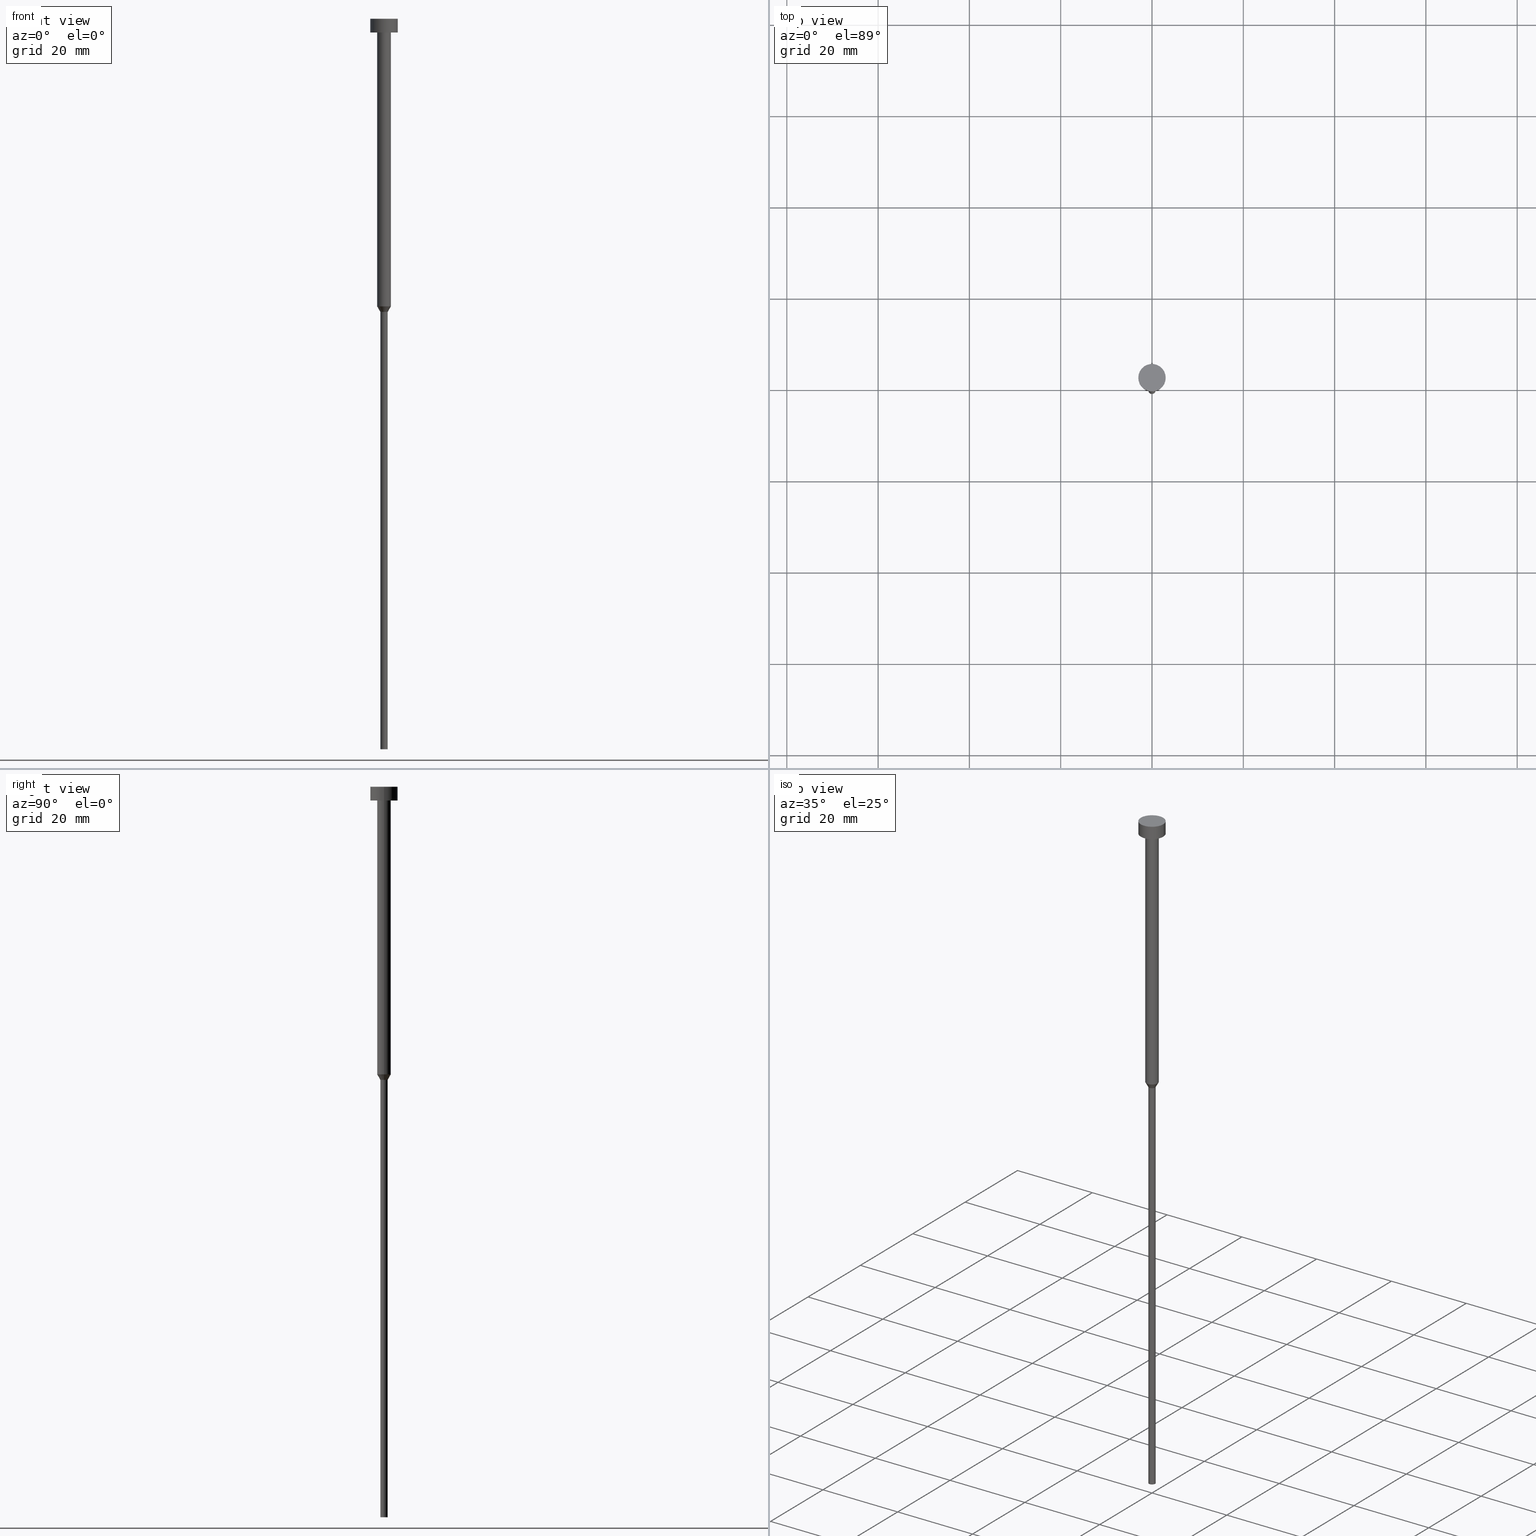
[diagram: canonical four-view strip — front | top / right | iso, engineering-drawing reading convention]
A machine part, canonical four-view strip (front | top / right | iso — engineering-drawing reading convention). The complete STEP part file that produces these views, byte-faithful:
ISO-10303-21;
HEADER;
FILE_DESCRIPTION (( 'STEP AP203' ),
    '1' );
FILE_NAME ('4787.STEP',
    '2023-02-13T10:02:17',
    ( '' ),
    ( '' ),
    'SwSTEP 2.0',
    'SolidWorks 2019',
    '' );
FILE_SCHEMA (( 'CONFIG_CONTROL_DESIGN' ));
ENDSEC;

DATA;
#1 = PLANE ( 'NONE',  #122 ) ;
#2 = EDGE_LOOP ( 'NONE', ( #156, #24, #78, #262 ) ) ;
#3 = DIRECTION ( 'NONE',  ( -0.000000000000000000, -0.000000000000000000, 1.000000000000000000 ) ) ;
#4 = VERTEX_POINT ( 'NONE', #188 ) ;
#5 = FACE_OUTER_BOUND ( 'NONE', #248, .T. ) ;
#6 = CYLINDRICAL_SURFACE ( 'NONE', #329, 1.500000000000000000 ) ;
#7 = CC_DESIGN_DATE_AND_TIME_ASSIGNMENT ( #197, #57, ( #351 ) ) ;
#8 = VERTEX_POINT ( 'NONE', #44 ) ;
#9 = PRODUCT_RELATED_PRODUCT_CATEGORY ( 'detail', '', ( #318 ) ) ;
#10 = CIRCLE ( 'NONE', #238, 0.7999999999999999334 ) ;
#11 = DIRECTION ( 'NONE',  ( 1.000000000000000000, 0.000000000000000000, 0.000000000000000000 ) ) ;
#12 = DATE_AND_TIME ( #183, #159 ) ;
#13 = ORIENTED_EDGE ( 'NONE', *, *, #264, .T. ) ;
#14 = CARTESIAN_POINT ( 'NONE',  ( 0.000000000000000000, 0.000000000000000000, 0.000000000000000000 ) ) ;
#15 = CARTESIAN_POINT ( 'NONE',  ( 0.000000000000000000, 0.000000000000000000, -3.000000000000000888 ) ) ;
#16 = CARTESIAN_POINT ( 'NONE',  ( 0.000000000000000000, 0.000000000000000000, -160.0000000000000000 ) ) ;
#17 = CIRCLE ( 'NONE', #304, 1.500000000000000000 ) ;
#18 = DIRECTION ( 'NONE',  ( 1.000000000000000000, 0.000000000000000000, 0.000000000000000000 ) ) ;
#19 = APPROVAL_DATE_TIME ( #52, #105 ) ;
#20 = PERSON_AND_ORGANIZATION_ROLE ( 'creator' ) ;
#21 = CARTESIAN_POINT ( 'NONE',  ( 0.7999999999999999334, 0.000000000000000000, 0.000000000000000000 ) ) ;
#22 = PRODUCT_DEFINITION_FORMATION_WITH_SPECIFIED_SOURCE ( 'LIBOVOLN�', '', #318, .NOT_KNOWN. ) ;
#23 = EDGE_CURVE ( 'NONE', #118, #321, #221, .T. ) ;
#24 = ORIENTED_EDGE ( 'NONE', *, *, #316, .T. ) ;
#25 = CIRCLE ( 'NONE', #340, 1.500000000000000000 ) ;
#26 = DIRECTION ( 'NONE',  ( -0.000000000000000000, -0.000000000000000000, 1.000000000000000000 ) ) ;
#27 = MANIFOLD_SOLID_BREP ( 'Rotovat1', #207 ) ;
#28 = DIRECTION ( 'NONE',  ( 1.000000000000000000, 0.000000000000000000, 0.000000000000000000 ) ) ;
#29 = FACE_OUTER_BOUND ( 'NONE', #2, .T. ) ;
#30 = DIRECTION ( 'NONE',  ( -0.000000000000000000, -0.000000000000000000, 1.000000000000000000 ) ) ;
#31 = CC_DESIGN_PERSON_AND_ORGANIZATION_ASSIGNMENT ( #204, #180, ( #318 ) ) ;
#32 = VERTEX_POINT ( 'NONE', #223 ) ;
#33 = APPROVAL_ROLE ( '' ) ;
#34 = CARTESIAN_POINT ( 'NONE',  ( 0.000000000000000000, 0.000000000000000000, -160.0000000000000000 ) ) ;
#35 = AXIS2_PLACEMENT_3D ( 'NONE', #14, #249, #72 ) ;
#36 = ORIENTED_EDGE ( 'NONE', *, *, #218, .F. ) ;
#37 = EDGE_LOOP ( 'NONE', ( #87, #154, #266, #36 ) ) ;
#38 = ORIENTED_EDGE ( 'NONE', *, *, #252, .F. ) ;
#39 = DIRECTION ( 'NONE',  ( -0.000000000000000000, -0.000000000000000000, 1.000000000000000000 ) ) ;
#40 = CC_DESIGN_SECURITY_CLASSIFICATION ( #351, ( #22 ) ) ;
#41 = ORIENTED_EDGE ( 'NONE', *, *, #211, .F. ) ;
#42 = CIRCLE ( 'NONE', #258, 3.000000000000000000 ) ;
#43 = PERSON_AND_ORGANIZATION_ROLE ( 'classification_officer' ) ;
#44 = CARTESIAN_POINT ( 'NONE',  ( -0.8000000000000001554, 9.797174393178827383E-17, -64.21243556529820751 ) ) ;
#45 = EDGE_CURVE ( 'NONE', #92, #53, #133, .T. ) ;
#46 = COORDINATED_UNIVERSAL_TIME_OFFSET ( 1, 0, .AHEAD. ) ;
#47 = LINE ( 'NONE', #50, #138 ) ;
#48 = DIRECTION ( 'NONE',  ( -0.000000000000000000, -0.000000000000000000, 1.000000000000000000 ) ) ;
#49 = DIRECTION ( 'NONE',  ( 1.000000000000000000, 0.000000000000000000, 0.000000000000000000 ) ) ;
#50 = CARTESIAN_POINT ( 'NONE',  ( -3.000000000000000000, 3.673940397442059868E-16, 0.000000000000000000 ) ) ;
#51 = CARTESIAN_POINT ( 'NONE',  ( 0.000000000000000000, 0.000000000000000000, -3.673940397442059868E-16 ) ) ;
#52 = DATE_AND_TIME ( #70, #348 ) ;
#53 = VERTEX_POINT ( 'NONE', #161 ) ;
#54 = ORIENTED_EDGE ( 'NONE', *, *, #218, .T. ) ;
#55 = LOCAL_TIME ( 11, 2, 17.00000000000000000, #307 ) ;
#56 = CIRCLE ( 'NONE', #113, 1.500000000000000000 ) ;
#57 = DATE_TIME_ROLE ( 'classification_date' ) ;
#58 = DIRECTION ( 'NONE',  ( -0.000000000000000000, -0.000000000000000000, 1.000000000000000000 ) ) ;
#59 = ADVANCED_FACE ( 'NONE', ( #308 ), #281, .T. ) ;
#60 = LINE ( 'NONE', #171, #292 ) ;
#61 = FACE_OUTER_BOUND ( 'NONE', #37, .T. ) ;
#62 = AXIS2_PLACEMENT_3D ( 'NONE', #104, #217, #322 ) ;
#63 = FACE_OUTER_BOUND ( 'NONE', #103, .T. ) ;
#64 = COORDINATED_UNIVERSAL_TIME_OFFSET ( 1, 0, .AHEAD. ) ;
#65 = ORIENTED_EDGE ( 'NONE', *, *, #239, .F. ) ;
#66 = ADVANCED_FACE ( 'NONE', ( #63 ), #151, .T. ) ;
#67 = DATE_AND_TIME ( #213, #186 ) ;
#68 = CONICAL_SURFACE ( 'NONE', #298, 1.500000000000000000, 0.5235987755983007030 ) ;
#69 = ORIENTED_EDGE ( 'NONE', *, *, #190, .F. ) ;
#70 = CALENDAR_DATE ( 2023, 13, 2 ) ;
#71 = ORIENTED_EDGE ( 'NONE', *, *, #137, .T. ) ;
#72 = DIRECTION ( 'NONE',  ( 1.000000000000000000, 0.000000000000000000, 0.000000000000000000 ) ) ;
#73 = ORIENTED_EDGE ( 'NONE', *, *, #211, .T. ) ;
#74 = APPROVAL_STATUS ( 'not_yet_approved' ) ;
#75 = APPROVAL ( #226, 'NEUR�EN�' ) ;
#76 = CARTESIAN_POINT ( 'NONE',  ( 0.000000000000000000, 0.000000000000000000, -63.00000000000000000 ) ) ;
#77 = CIRCLE ( 'NONE', #172, 1.500000000000000000 ) ;
#78 = ORIENTED_EDGE ( 'NONE', *, *, #277, .F. ) ;
#79 = AXIS2_PLACEMENT_3D ( 'NONE', #51, #86, #194 ) ;
#80 = DIRECTION ( 'NONE',  ( 0.000000000000000000, -0.000000000000000000, 1.000000000000000000 ) ) ;
#81 = EDGE_CURVE ( 'NONE', #109, #323, #56, .T. ) ;
#82 = DIRECTION ( 'NONE',  ( -0.000000000000000000, -0.000000000000000000, 1.000000000000000000 ) ) ;
#83 = DIRECTION ( 'NONE',  ( 1.000000000000000000, 0.000000000000000000, 0.000000000000000000 ) ) ;
#84 = AXIS2_PLACEMENT_3D ( 'NONE', #256, #147, #116 ) ;
#85 = ADVANCED_FACE ( 'NONE', ( #5 ), #139, .T. ) ;
#86 = DIRECTION ( 'NONE',  ( -0.000000000000000000, -0.000000000000000000, 1.000000000000000000 ) ) ;
#87 = ORIENTED_EDGE ( 'NONE', *, *, #252, .T. ) ;
#88 = ADVANCED_FACE ( 'NONE', ( #124 ), #232, .T. ) ;
#89 = DIRECTION ( 'NONE',  ( 1.000000000000000000, 0.000000000000000000, 0.000000000000000000 ) ) ;
#90 = ORIENTED_EDGE ( 'NONE', *, *, #81, .F. ) ;
#91 = CARTESIAN_POINT ( 'NONE',  ( 0.000000000000000000, 0.000000000000000000, 0.000000000000000000 ) ) ;
#92 = VERTEX_POINT ( 'NONE', #209 ) ;
#93 = DIRECTION ( 'NONE',  ( 1.000000000000000000, 0.000000000000000000, 0.000000000000000000 ) ) ;
#94 = DIRECTION ( 'NONE',  ( -0.000000000000000000, -0.000000000000000000, 1.000000000000000000 ) ) ;
#95 = CIRCLE ( 'NONE', #162, 0.8000000000000000444 ) ;
#96 = PERSON_AND_ORGANIZATION ( #193, #235 ) ;
#97 = CARTESIAN_POINT ( 'NONE',  ( 0.000000000000000000, 0.000000000000000000, -3.000000000000000888 ) ) ;
#98 = EDGE_CURVE ( 'NONE', #210, #32, #42, .T. ) ;
#99 = ORIENTED_EDGE ( 'NONE', *, *, #137, .F. ) ;
#100 = MECHANICAL_CONTEXT ( 'NONE', #146, 'mechanical' ) ;
#101 = LOCAL_TIME ( 11, 2, 17.00000000000000000, #46 ) ;
#102 = CYLINDRICAL_SURFACE ( 'NONE', #35, 3.000000000000000000 ) ;
#103 = EDGE_LOOP ( 'NONE', ( #330, #69 ) ) ;
#104 = CARTESIAN_POINT ( 'NONE',  ( 0.000000000000000000, 0.000000000000000000, 0.000000000000000000 ) ) ;
#105 = APPROVAL ( #267, 'NEUR�EN�' ) ;
#106 = ORIENTED_EDGE ( 'NONE', *, *, #174, .F. ) ;
#107 = CALENDAR_DATE ( 2023, 13, 2 ) ;
#108 = DIRECTION ( 'NONE',  ( -0.000000000000000000, -0.000000000000000000, 1.000000000000000000 ) ) ;
#109 = VERTEX_POINT ( 'NONE', #355 ) ;
#110 = APPROVAL_PERSON_ORGANIZATION ( #149, #75, #33 ) ;
#111 = PLANE ( 'NONE',  #222 ) ;
#112 = APPROVAL ( #74, 'NEUR�EN�' ) ;
#113 = AXIS2_PLACEMENT_3D ( 'NONE', #155, #58, #93 ) ;
#114 = PERSON_AND_ORGANIZATION_ROLE ( 'creator' ) ;
#115 = DIRECTION ( 'NONE',  ( -0.000000000000000000, -0.000000000000000000, 1.000000000000000000 ) ) ;
#116 = DIRECTION ( 'NONE',  ( 1.000000000000000000, 0.000000000000000000, 0.000000000000000000 ) ) ;
#117 = AXIS2_PLACEMENT_3D ( 'NONE', #123, #216, #269 ) ;
#118 = VERTEX_POINT ( 'NONE', #283 ) ;
#119 = CALENDAR_DATE ( 2023, 13, 2 ) ;
#120 = DIRECTION ( 'NONE',  ( -1.000000000000000000, 0.000000000000000000, -0.000000000000000000 ) ) ;
#121 =( NAMED_UNIT ( * ) PLANE_ANGLE_UNIT ( ) SI_UNIT ( $, .RADIAN. ) );
#122 = AXIS2_PLACEMENT_3D ( 'NONE', #335, #334, #205 ) ;
#123 = CARTESIAN_POINT ( 'NONE',  ( 0.000000000000000000, 0.000000000000000000, 0.000000000000000000 ) ) ;
#124 = FACE_OUTER_BOUND ( 'NONE', #244, .T. ) ;
#125 = DIRECTION ( 'NONE',  ( 0.000000000000000000, 0.000000000000000000, -1.000000000000000000 ) ) ;
#126 = CC_DESIGN_PERSON_AND_ORGANIZATION_ASSIGNMENT ( #274, #20, ( #212 ) ) ;
#127 = ORIENTED_EDGE ( 'NONE', *, *, #23, .F. ) ;
#128 = ORIENTED_EDGE ( 'NONE', *, *, #23, .T. ) ;
#129 = EDGE_LOOP ( 'NONE', ( #130, #73, #38, #195 ) ) ;
#130 = ORIENTED_EDGE ( 'NONE', *, *, #174, .T. ) ;
#131 = FACE_OUTER_BOUND ( 'NONE', #341, .T. ) ;
#132 = VECTOR ( 'NONE', #143, 1000.000000000000000 ) ;
#133 = CIRCLE ( 'NONE', #79, 3.000000000000000000 ) ;
#134 = CARTESIAN_POINT ( 'NONE',  ( 0.8000000000000000444, 0.000000000000000000, -64.21243556529820751 ) ) ;
#135 = ORIENTED_EDGE ( 'NONE', *, *, #190, .T. ) ;
#136 = PERSON_AND_ORGANIZATION_ROLE ( 'design_supplier' ) ;
#137 = EDGE_CURVE ( 'NONE', #8, #321, #95, .T. ) ;
#138 = VECTOR ( 'NONE', #163, 1000.000000000000000 ) ;
#139 = CONICAL_SURFACE ( 'NONE', #178, 1.500000000000000000, 0.5235987755983007030 ) ;
#140 = CARTESIAN_POINT ( 'NONE',  ( -1.500000000000000000, 1.836970198721029934E-16, -3.000000000000000888 ) ) ;
#141 = DIRECTION ( 'NONE',  ( 1.000000000000000000, 0.000000000000000000, 0.000000000000000000 ) ) ;
#142 = ADVANCED_FACE ( 'NONE', ( #169, #201 ), #1, .T. ) ;
#143 = DIRECTION ( 'NONE',  ( -0.000000000000000000, -0.000000000000000000, 1.000000000000000000 ) ) ;
#144 =( NAMED_UNIT ( * ) SI_UNIT ( $, .STERADIAN. ) SOLID_ANGLE_UNIT ( ) );
#145 = CC_DESIGN_APPROVAL ( #112, ( #22 ) ) ;
#146 = APPLICATION_CONTEXT ( 'configuration controlled 3d designs of mechanical parts and assemblies' ) ;
#147 = DIRECTION ( 'NONE',  ( -0.000000000000000000, -0.000000000000000000, 1.000000000000000000 ) ) ;
#148 = ADVANCED_FACE ( 'NONE', ( #29 ), #285, .T. ) ;
#149 = PERSON_AND_ORGANIZATION ( #193, #235 ) ;
#150 = CC_DESIGN_PERSON_AND_ORGANIZATION_ASSIGNMENT ( #251, #114, ( #22 ) ) ;
#151 = PLANE ( 'NONE',  #173 ) ;
#152 = APPROVAL_PERSON_ORGANIZATION ( #297, #112, #275 ) ;
#153 = EDGE_CURVE ( 'NONE', #32, #53, #60, .T. ) ;
#154 = ORIENTED_EDGE ( 'NONE', *, *, #354, .T. ) ;
#155 = CARTESIAN_POINT ( 'NONE',  ( 0.000000000000000000, 0.000000000000000000, -63.00000000000000000 ) ) ;
#156 = ORIENTED_EDGE ( 'NONE', *, *, #239, .T. ) ;
#157 = FACE_OUTER_BOUND ( 'NONE', #200, .T. ) ;
#158 = AXIS2_PLACEMENT_3D ( 'NONE', #273, #253, #83 ) ;
#159 = LOCAL_TIME ( 11, 2, 17.00000000000000000, #185 ) ;
#160 = DIRECTION ( 'NONE',  ( -0.000000000000000000, -0.000000000000000000, 1.000000000000000000 ) ) ;
#161 = CARTESIAN_POINT ( 'NONE',  ( 3.000000000000000000, 0.000000000000000000, -3.673940397442059868E-16 ) ) ;
#162 = AXIS2_PLACEMENT_3D ( 'NONE', #230, #26, #259 ) ;
#163 = DIRECTION ( 'NONE',  ( -0.000000000000000000, -0.000000000000000000, 1.000000000000000000 ) ) ;
#164 = CARTESIAN_POINT ( 'NONE',  ( 1.500000000000000000, 0.000000000000000000, -63.00000000000000000 ) ) ;
#165 = DIRECTION ( 'NONE',  ( 1.000000000000000000, 0.000000000000000000, 0.000000000000000000 ) ) ;
#166 = ADVANCED_FACE ( 'NONE', ( #157 ), #102, .T. ) ;
#167 = ADVANCED_BREP_SHAPE_REPRESENTATION ( '4787', ( #27, #117 ), #263 ) ;
#168 = ORIENTED_EDGE ( 'NONE', *, *, #301, .T. ) ;
#169 = FACE_BOUND ( 'NONE', #291, .T. ) ;
#170 = ORIENTED_EDGE ( 'NONE', *, *, #354, .F. ) ;
#171 = CARTESIAN_POINT ( 'NONE',  ( 3.000000000000000000, 0.000000000000000000, 0.000000000000000000 ) ) ;
#172 = AXIS2_PLACEMENT_3D ( 'NONE', #327, #39, #18 ) ;
#173 = AXIS2_PLACEMENT_3D ( 'NONE', #34, #125, #120 ) ;
#174 = EDGE_CURVE ( 'NONE', #321, #8, #220, .T. ) ;
#175 = AXIS2_PLACEMENT_3D ( 'NONE', #305, #160, #141 ) ;
#176 = APPROVAL_DATE_TIME ( #67, #75 ) ;
#177 = CC_DESIGN_PERSON_AND_ORGANIZATION_ASSIGNMENT ( #299, #136, ( #22 ) ) ;
#178 = AXIS2_PLACEMENT_3D ( 'NONE', #339, #3, #89 ) ;
#179 = EDGE_LOOP ( 'NONE', ( #265, #352 ) ) ;
#180 = PERSON_AND_ORGANIZATION_ROLE ( 'design_owner' ) ;
#181 = DIRECTION ( 'NONE',  ( -0.5000000000000015543, 6.123233995736783292E-17, 0.8660254037844377084 ) ) ;
#182 = ORIENTED_EDGE ( 'NONE', *, *, #316, .F. ) ;
#183 = CALENDAR_DATE ( 2023, 13, 2 ) ;
#184 = EDGE_CURVE ( 'NONE', #4, #268, #17, .T. ) ;
#185 = COORDINATED_UNIVERSAL_TIME_OFFSET ( 1, 0, .AHEAD. ) ;
#186 = LOCAL_TIME ( 11, 2, 17.00000000000000000, #64 ) ;
#187 = CARTESIAN_POINT ( 'NONE',  ( 0.000000000000000000, 0.000000000000000000, -1.836970198721029934E-16 ) ) ;
#188 = CARTESIAN_POINT ( 'NONE',  ( 1.500000000000000000, 0.000000000000000000, -3.000000000000000888 ) ) ;
#189 = DIRECTION ( 'NONE',  ( 1.000000000000000000, 0.000000000000000000, 0.000000000000000000 ) ) ;
#190 = EDGE_CURVE ( 'NONE', #343, #118, #333, .T. ) ;
#191 = DIRECTION ( 'NONE',  ( -0.000000000000000000, -0.000000000000000000, 1.000000000000000000 ) ) ;
#192 = ORIENTED_EDGE ( 'NONE', *, *, #153, .T. ) ;
#193 = PERSON ( 'NEUR�EN�', 'NEUR�EN�', 'NEUR�EN�', ('NEUR�EN�'), ('NEUR�EN�'), ('NEUR�EN�') ) ;
#194 = DIRECTION ( 'NONE',  ( 1.000000000000000000, 0.000000000000000000, 0.000000000000000000 ) ) ;
#195 = ORIENTED_EDGE ( 'NONE', *, *, #301, .F. ) ;
#196 = EDGE_CURVE ( 'NONE', #343, #8, #260, .T. ) ;
#197 = DATE_AND_TIME ( #119, #55 ) ;
#198 = AXIS2_PLACEMENT_3D ( 'NONE', #91, #30, #234 ) ;
#199 = DIRECTION ( 'NONE',  ( -0.000000000000000000, -0.000000000000000000, 1.000000000000000000 ) ) ;
#200 = EDGE_LOOP ( 'NONE', ( #182, #208, #192, #296 ) ) ;
#201 = FACE_OUTER_BOUND ( 'NONE', #240, .T. ) ;
#202 = ORIENTED_EDGE ( 'NONE', *, *, #196, .T. ) ;
#203 = DIRECTION ( 'NONE',  ( -0.000000000000000000, -0.000000000000000000, 1.000000000000000000 ) ) ;
#204 = PERSON_AND_ORGANIZATION ( #193, #235 ) ;
#205 = DIRECTION ( 'NONE',  ( -1.000000000000000000, 0.000000000000000000, -0.000000000000000000 ) ) ;
#206 = CC_DESIGN_APPROVAL ( #75, ( #351 ) ) ;
#207 = CLOSED_SHELL ( 'NONE', ( #148, #231, #317, #59, #66, #284, #85, #88, #142, #166, #314 ) ) ;
#208 = ORIENTED_EDGE ( 'NONE', *, *, #98, .T. ) ;
#209 = CARTESIAN_POINT ( 'NONE',  ( -3.000000000000000000, 3.673940397442059868E-16, -3.673940397442059868E-16 ) ) ;
#210 = VERTEX_POINT ( 'NONE', #224 ) ;
#211 = EDGE_CURVE ( 'NONE', #8, #109, #353, .T. ) ;
#212 = PRODUCT_DEFINITION ( 'NEZN�M�', '', #22, #325 ) ;
#213 = CALENDAR_DATE ( 2023, 13, 2 ) ;
#214 = COORDINATED_UNIVERSAL_TIME_OFFSET ( 1, 0, .AHEAD. ) ;
#215 = VECTOR ( 'NONE', #181, 1000.000000000000227 ) ;
#216 = DIRECTION ( 'NONE',  ( 0.000000000000000000, 0.000000000000000000, 1.000000000000000000 ) ) ;
#217 = DIRECTION ( 'NONE',  ( -0.000000000000000000, -0.000000000000000000, 1.000000000000000000 ) ) ;
#218 = EDGE_CURVE ( 'NONE', #323, #4, #237, .T. ) ;
#219 = DATE_AND_TIME ( #107, #101 ) ;
#220 = CIRCLE ( 'NONE', #175, 0.8000000000000000444 ) ;
#221 = LINE ( 'NONE', #21, #290 ) ;
#222 = AXIS2_PLACEMENT_3D ( 'NONE', #187, #80, #300 ) ;
#223 = CARTESIAN_POINT ( 'NONE',  ( 3.000000000000000000, 0.000000000000000000, -3.000000000000000888 ) ) ;
#224 = CARTESIAN_POINT ( 'NONE',  ( -3.000000000000000000, 3.673940397442059868E-16, -3.000000000000000888 ) ) ;
#225 = ORIENTED_EDGE ( 'NONE', *, *, #196, .F. ) ;
#226 = APPROVAL_STATUS ( 'not_yet_approved' ) ;
#227 =( LENGTH_UNIT ( ) NAMED_UNIT ( * ) SI_UNIT ( .MILLI., .METRE. ) );
#228 = CARTESIAN_POINT ( 'NONE',  ( 0.000000000000000000, 0.000000000000000000, 0.000000000000000000 ) ) ;
#229 = CARTESIAN_POINT ( 'NONE',  ( -0.7999999999999999334, 9.797174393178824918E-17, 0.000000000000000000 ) ) ;
#230 = CARTESIAN_POINT ( 'NONE',  ( 0.000000000000000000, 0.000000000000000000, -64.21243556529820751 ) ) ;
#231 = ADVANCED_FACE ( 'NONE', ( #61 ), #6, .T. ) ;
#232 = CYLINDRICAL_SURFACE ( 'NONE', #293, 1.500000000000000000 ) ;
#233 = CARTESIAN_POINT ( 'NONE',  ( 0.000000000000000000, 0.000000000000000000, 0.000000000000000000 ) ) ;
#234 = DIRECTION ( 'NONE',  ( 1.000000000000000000, 0.000000000000000000, 0.000000000000000000 ) ) ;
#235 = ORGANIZATION ( 'NEUR�EN�', 'NEUR�EN�', '' ) ;
#236 = SHAPE_DEFINITION_REPRESENTATION ( #294, #167 ) ;
#237 = LINE ( 'NONE', #241, #250 ) ;
#238 = AXIS2_PLACEMENT_3D ( 'NONE', #16, #255, #165 ) ;
#239 = EDGE_CURVE ( 'NONE', #32, #210, #310, .T. ) ;
#240 = EDGE_LOOP ( 'NONE', ( #65, #320 ) ) ;
#241 = CARTESIAN_POINT ( 'NONE',  ( 1.500000000000000000, 0.000000000000000000, 0.000000000000000000 ) ) ;
#242 = ORIENTED_EDGE ( 'NONE', *, *, #184, .T. ) ;
#243 = CARTESIAN_POINT ( 'NONE',  ( 1.500000000000000000, 0.000000000000000000, -63.00000000000000000 ) ) ;
#244 = EDGE_LOOP ( 'NONE', ( #170, #332, #54, #295 ) ) ;
#245 = CYLINDRICAL_SURFACE ( 'NONE', #62, 0.7999999999999999334 ) ;
#246 = SECURITY_CLASSIFICATION_LEVEL ( 'unclassified' ) ;
#247 = LINE ( 'NONE', #346, #319 ) ;
#248 = EDGE_LOOP ( 'NONE', ( #41, #71, #168, #90 ) ) ;
#249 = DIRECTION ( 'NONE',  ( -0.000000000000000000, -0.000000000000000000, 1.000000000000000000 ) ) ;
#250 = VECTOR ( 'NONE', #203, 1000.000000000000000 ) ;
#251 = PERSON_AND_ORGANIZATION ( #193, #235 ) ;
#252 = EDGE_CURVE ( 'NONE', #323, #109, #25, .T. ) ;
#253 = DIRECTION ( 'NONE',  ( -0.000000000000000000, -0.000000000000000000, 1.000000000000000000 ) ) ;
#254 = CARTESIAN_POINT ( 'NONE',  ( 0.000000000000000000, 0.000000000000000000, -3.000000000000000888 ) ) ;
#255 = DIRECTION ( 'NONE',  ( -0.000000000000000000, -0.000000000000000000, 1.000000000000000000 ) ) ;
#256 = CARTESIAN_POINT ( 'NONE',  ( 0.000000000000000000, 0.000000000000000000, -160.0000000000000000 ) ) ;
#257 = AXIS2_PLACEMENT_3D ( 'NONE', #15, #82, #189 ) ;
#258 = AXIS2_PLACEMENT_3D ( 'NONE', #97, #311, #336 ) ;
#259 = DIRECTION ( 'NONE',  ( 1.000000000000000000, 0.000000000000000000, 0.000000000000000000 ) ) ;
#260 = LINE ( 'NONE', #229, #132 ) ;
#261 = CARTESIAN_POINT ( 'NONE',  ( 0.000000000000000000, 0.000000000000000000, 0.000000000000000000 ) ) ;
#262 = ORIENTED_EDGE ( 'NONE', *, *, #153, .F. ) ;
#263 =( GEOMETRIC_REPRESENTATION_CONTEXT ( 3 ) GLOBAL_UNCERTAINTY_ASSIGNED_CONTEXT ( ( #328 ) ) GLOBAL_UNIT_ASSIGNED_CONTEXT ( ( #227, #121, #144 ) ) REPRESENTATION_CONTEXT ( 'NONE', 'WORKASPACE' ) );
#264 = EDGE_CURVE ( 'NONE', #268, #4, #77, .T. ) ;
#265 = ORIENTED_EDGE ( 'NONE', *, *, #277, .T. ) ;
#266 = ORIENTED_EDGE ( 'NONE', *, *, #184, .F. ) ;
#267 = APPROVAL_STATUS ( 'not_yet_approved' ) ;
#268 = VERTEX_POINT ( 'NONE', #140 ) ;
#269 = DIRECTION ( 'NONE',  ( 1.000000000000000000, 0.000000000000000000, 0.000000000000000000 ) ) ;
#270 = ORIENTED_EDGE ( 'NONE', *, *, #302, .T. ) ;
#271 = APPROVAL_PERSON_ORGANIZATION ( #96, #105, #315 ) ;
#272 = CC_DESIGN_PERSON_AND_ORGANIZATION_ASSIGNMENT ( #345, #43, ( #351 ) ) ;
#273 = CARTESIAN_POINT ( 'NONE',  ( 0.000000000000000000, 0.000000000000000000, -3.673940397442059868E-16 ) ) ;
#274 = PERSON_AND_ORGANIZATION ( #193, #235 ) ;
#275 = APPROVAL_ROLE ( '' ) ;
#276 = DIRECTION ( 'NONE',  ( 1.000000000000000000, 0.000000000000000000, 0.000000000000000000 ) ) ;
#277 = EDGE_CURVE ( 'NONE', #53, #92, #282, .T. ) ;
#278 = FACE_OUTER_BOUND ( 'NONE', #129, .T. ) ;
#279 = DIRECTION ( 'NONE',  ( 0.5000000000000015543, 0.000000000000000000, 0.8660254037844377084 ) ) ;
#280 = DIRECTION ( 'NONE',  ( 1.000000000000000000, 0.000000000000000000, 0.000000000000000000 ) ) ;
#281 = CYLINDRICAL_SURFACE ( 'NONE', #198, 0.7999999999999999334 ) ;
#282 = CIRCLE ( 'NONE', #158, 3.000000000000000000 ) ;
#283 = CARTESIAN_POINT ( 'NONE',  ( 0.7999999999999999334, 0.000000000000000000, -160.0000000000000000 ) ) ;
#284 = ADVANCED_FACE ( 'NONE', ( #131 ), #245, .T. ) ;
#285 = CYLINDRICAL_SURFACE ( 'NONE', #326, 3.000000000000000000 ) ;
#286 = APPLICATION_PROTOCOL_DEFINITION ( 'international standard', 'config_control_design', 1994, #146 ) ;
#287 = DIRECTION ( 'NONE',  ( -0.000000000000000000, -0.000000000000000000, 1.000000000000000000 ) ) ;
#288 = VECTOR ( 'NONE', #279, 1000.000000000000227 ) ;
#289 = DIRECTION ( 'NONE',  ( -0.000000000000000000, -0.000000000000000000, 1.000000000000000000 ) ) ;
#290 = VECTOR ( 'NONE', #48, 1000.000000000000000 ) ;
#291 = EDGE_LOOP ( 'NONE', ( #242, #13 ) ) ;
#292 = VECTOR ( 'NONE', #289, 1000.000000000000000 ) ;
#293 = AXIS2_PLACEMENT_3D ( 'NONE', #228, #199, #28 ) ;
#294 = PRODUCT_DEFINITION_SHAPE ( 'NONE', 'NONE',  #212 ) ;
#295 = ORIENTED_EDGE ( 'NONE', *, *, #264, .F. ) ;
#296 = ORIENTED_EDGE ( 'NONE', *, *, #45, .F. ) ;
#297 = PERSON_AND_ORGANIZATION ( #193, #235 ) ;
#298 = AXIS2_PLACEMENT_3D ( 'NONE', #76, #191, #11 ) ;
#299 = PERSON_AND_ORGANIZATION ( #193, #235 ) ;
#300 = DIRECTION ( 'NONE',  ( 1.000000000000000000, 0.000000000000000000, 0.000000000000000000 ) ) ;
#301 = EDGE_CURVE ( 'NONE', #321, #323, #344, .T. ) ;
#302 = EDGE_CURVE ( 'NONE', #118, #343, #10, .T. ) ;
#303 = CARTESIAN_POINT ( 'NONE',  ( 0.000000000000000000, 0.000000000000000000, -63.00000000000000000 ) ) ;
#304 = AXIS2_PLACEMENT_3D ( 'NONE', #254, #287, #280 ) ;
#305 = CARTESIAN_POINT ( 'NONE',  ( 0.000000000000000000, 0.000000000000000000, -64.21243556529820751 ) ) ;
#306 = EDGE_LOOP ( 'NONE', ( #270, #202, #106, #127 ) ) ;
#307 = COORDINATED_UNIVERSAL_TIME_OFFSET ( 1, 0, .AHEAD. ) ;
#308 = FACE_OUTER_BOUND ( 'NONE', #306, .T. ) ;
#309 = CARTESIAN_POINT ( 'NONE',  ( -1.500000000000000000, 1.836970198721029934E-16, -63.00000000000000000 ) ) ;
#310 = CIRCLE ( 'NONE', #257, 3.000000000000000000 ) ;
#311 = DIRECTION ( 'NONE',  ( -0.000000000000000000, -0.000000000000000000, 1.000000000000000000 ) ) ;
#312 = DIRECTION ( 'NONE',  ( 1.000000000000000000, 0.000000000000000000, 0.000000000000000000 ) ) ;
#313 = DIRECTION ( 'NONE',  ( -0.000000000000000000, -0.000000000000000000, 1.000000000000000000 ) ) ;
#314 = ADVANCED_FACE ( 'NONE', ( #349 ), #111, .T. ) ;
#315 = APPROVAL_ROLE ( '' ) ;
#316 = EDGE_CURVE ( 'NONE', #210, #92, #47, .T. ) ;
#317 = ADVANCED_FACE ( 'NONE', ( #278 ), #68, .T. ) ;
#318 = PRODUCT ( '4787', '4787', '', ( #100 ) ) ;
#319 = VECTOR ( 'NONE', #108, 1000.000000000000000 ) ;
#320 = ORIENTED_EDGE ( 'NONE', *, *, #98, .F. ) ;
#321 = VERTEX_POINT ( 'NONE', #134 ) ;
#322 = DIRECTION ( 'NONE',  ( 1.000000000000000000, 0.000000000000000000, 0.000000000000000000 ) ) ;
#323 = VERTEX_POINT ( 'NONE', #243 ) ;
#324 = DATE_TIME_ROLE ( 'creation_date' ) ;
#325 = DESIGN_CONTEXT ( 'detailed design', #350, 'design' ) ;
#326 = AXIS2_PLACEMENT_3D ( 'NONE', #261, #313, #312 ) ;
#327 = CARTESIAN_POINT ( 'NONE',  ( 0.000000000000000000, 0.000000000000000000, -3.000000000000000888 ) ) ;
#328 = UNCERTAINTY_MEASURE_WITH_UNIT (LENGTH_MEASURE( 1.000000000000000082E-05 ), #227, 'distance_accuracy_value', 'NONE');
#329 = AXIS2_PLACEMENT_3D ( 'NONE', #233, #94, #276 ) ;
#330 = ORIENTED_EDGE ( 'NONE', *, *, #302, .F. ) ;
#331 = CC_DESIGN_DATE_AND_TIME_ASSIGNMENT ( #219, #324, ( #212 ) ) ;
#332 = ORIENTED_EDGE ( 'NONE', *, *, #81, .T. ) ;
#333 = CIRCLE ( 'NONE', #84, 0.7999999999999999334 ) ;
#334 = DIRECTION ( 'NONE',  ( 0.000000000000000000, 0.000000000000000000, -1.000000000000000000 ) ) ;
#335 = CARTESIAN_POINT ( 'NONE',  ( 0.000000000000000000, -3.000000000000000000, -3.000000000000000888 ) ) ;
#336 = DIRECTION ( 'NONE',  ( 1.000000000000000000, 0.000000000000000000, 0.000000000000000000 ) ) ;
#337 = CC_DESIGN_APPROVAL ( #105, ( #212 ) ) ;
#338 = APPLICATION_PROTOCOL_DEFINITION ( 'international standard', 'config_control_design', 1994, #350 ) ;
#339 = CARTESIAN_POINT ( 'NONE',  ( 0.000000000000000000, 0.000000000000000000, -63.00000000000000000 ) ) ;
#340 = AXIS2_PLACEMENT_3D ( 'NONE', #303, #115, #49 ) ;
#341 = EDGE_LOOP ( 'NONE', ( #225, #135, #128, #99 ) ) ;
#342 = CARTESIAN_POINT ( 'NONE',  ( -0.7999999999999999334, 9.797174393178824918E-17, -160.0000000000000000 ) ) ;
#343 = VERTEX_POINT ( 'NONE', #342 ) ;
#344 = LINE ( 'NONE', #164, #288 ) ;
#345 = PERSON_AND_ORGANIZATION ( #193, #235 ) ;
#346 = CARTESIAN_POINT ( 'NONE',  ( -1.500000000000000000, 1.836970198721029934E-16, 0.000000000000000000 ) ) ;
#347 = APPROVAL_DATE_TIME ( #12, #112 ) ;
#348 = LOCAL_TIME ( 11, 2, 17.00000000000000000, #214 ) ;
#349 = FACE_OUTER_BOUND ( 'NONE', #179, .T. ) ;
#350 = APPLICATION_CONTEXT ( 'configuration controlled 3d designs of mechanical parts and assemblies' ) ;
#351 = SECURITY_CLASSIFICATION ( '', '', #246 ) ;
#352 = ORIENTED_EDGE ( 'NONE', *, *, #45, .T. ) ;
#353 = LINE ( 'NONE', #309, #215 ) ;
#354 = EDGE_CURVE ( 'NONE', #109, #268, #247, .T. ) ;
#355 = CARTESIAN_POINT ( 'NONE',  ( -1.500000000000000000, 1.836970198721029934E-16, -63.00000000000000000 ) ) ;
ENDSEC;
END-ISO-10303-21;
